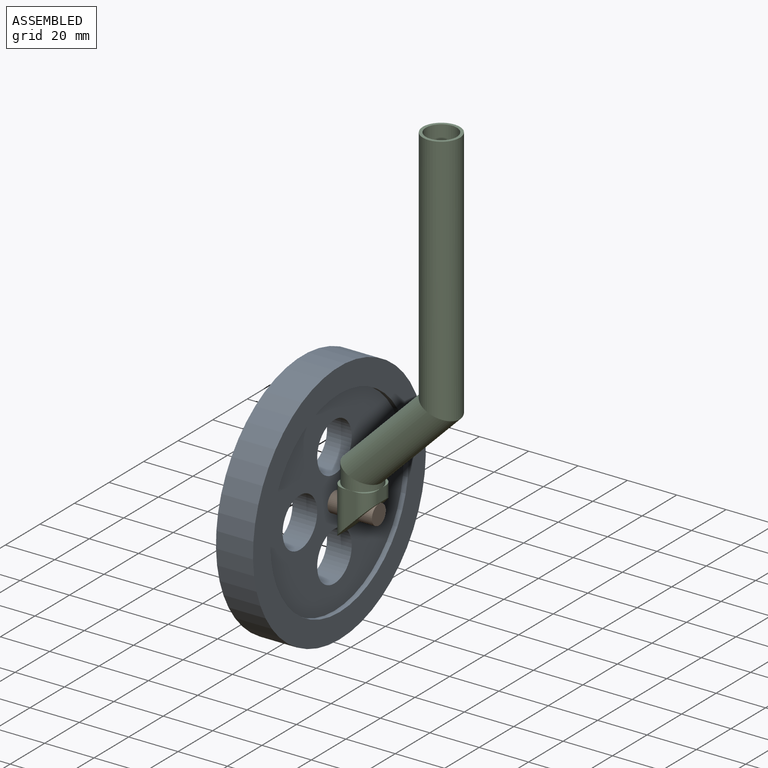
[diagram: assembled view]
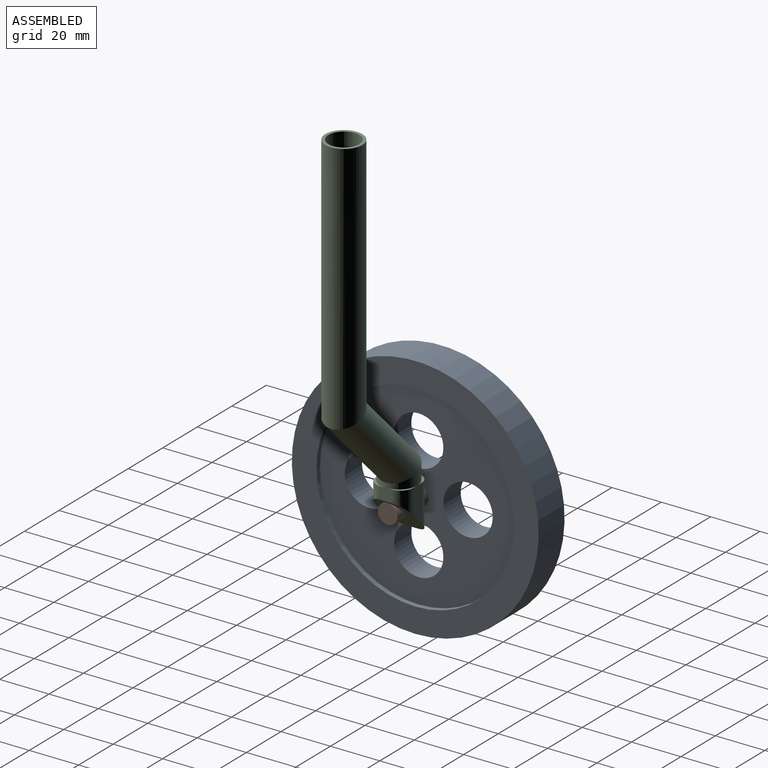
[diagram: assembled view, second angle]
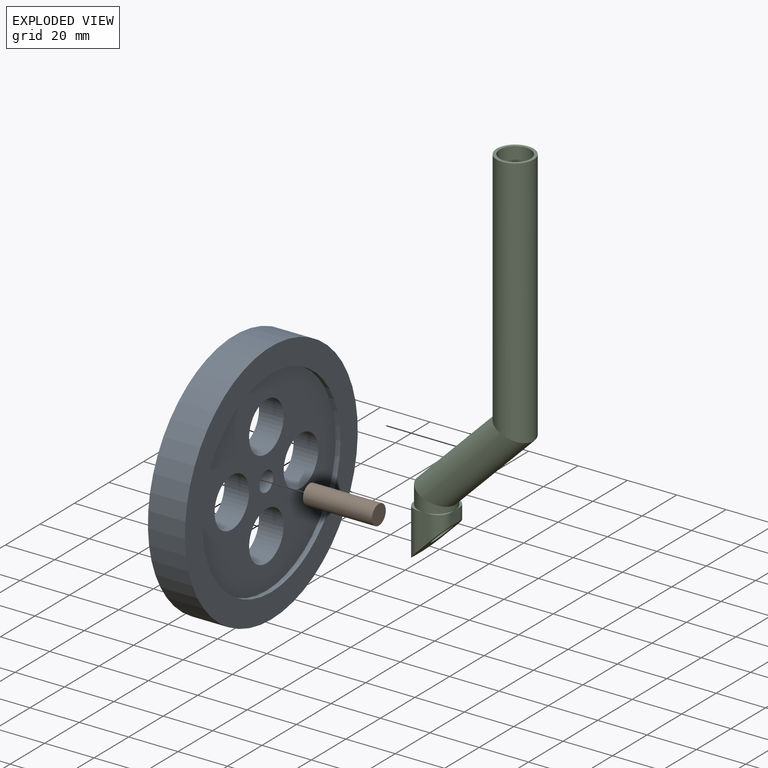
[diagram: exploded view]
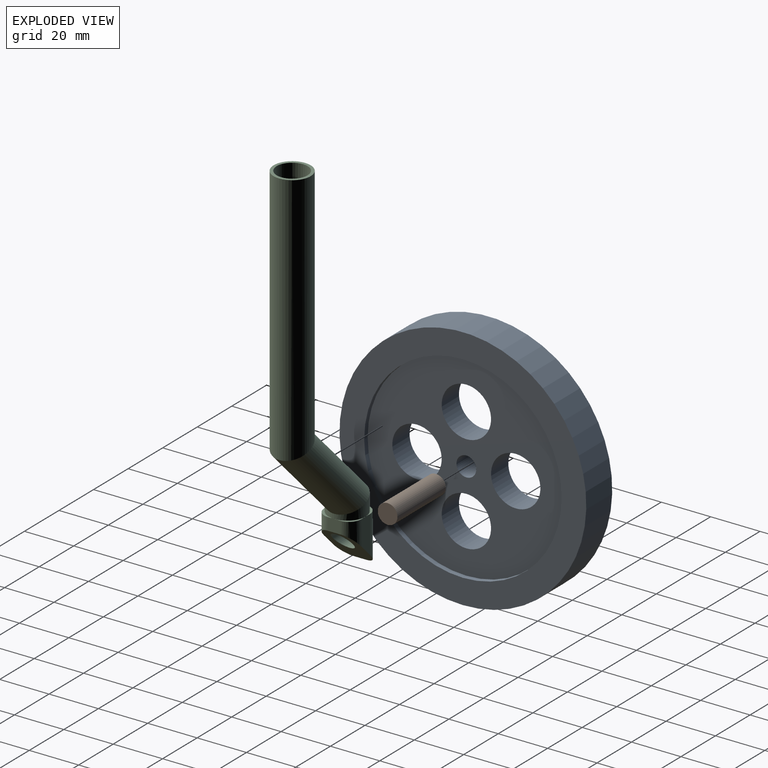
[diagram: exploded view, second angle]
ASSEMBLY  parts=3 mates=2
PART A: 12 faces, bbox 15x100x100 mm
  f0: cylinder r=10mm len=20mm, axis (-1,0,0), area 628.3mm2, adj f8,f10
  f1: cylinder r=10mm len=20mm, axis (-1,0,0), area 628.3mm2, adj f8,f10
  f2: cylinder r=10mm len=20mm, axis (-1,0,0), area 628.3mm2, adj f8,f10
  f3: cylinder r=10mm len=20mm, axis (-1,0,0), area 628.3mm2, adj f8,f10
  f4: cylinder r=40mm len=80mm, axis (-1,0,0), area 754mm2, adj f6,f8
  f5: cylinder r=50mm len=100mm, axis (-1,0,0), area 4712.4mm2, adj f6,f7
  f6: plane 100x100mm, normal (1,0,0), area 2827.4mm2, adj f4,f5
  f7: plane 100x100mm, normal (-1,0,0), area 2827.4mm2, adj f5,f9
  f8: plane 80x80mm, normal (1,0,0), area 3719.6mm2, adj f0,f1,f2,f3,f4,f11
  f9: cylinder r=40mm len=80mm, axis (-1,0,0), area 502.7mm2, adj f7,f10
  f10: plane 80x80mm, normal (-1,0,0), area 3719.6mm2, adj f0,f1,f2,f3,f9,f11
  f11: cylinder r=4mm len=10mm, axis (-1,0,0), area 251.3mm2, adj f8,f10
PART B: 3 faces, bbox 28x8x8 mm
  f0: cylinder r=4mm len=28mm, axis (-1,0,0), area 703.7mm2, adj f1,f2
  f1: plane 8x8mm, normal (1,0,0), area 50.3mm2, adj f0
  f2: plane 8x8mm, normal (-1,0,0), area 50.3mm2, adj f0
PART C: 23 faces, bbox 46.8x15x156.8 mm
  f0: plane 6.88x5mm, normal (-1,0,0), area 31.4mm2, adj f17,f20,f21,f22
  f1: plane 6.88x5mm, normal (-1,0,0), area 31.4mm2, adj f13,f14,f20,f21,f22
  f2: cylinder r=6.28mm len=102.6mm, axis (0,0,1), area 3945.8mm2, adj f3,f5
  f3: cylinder r=6.28mm len=44.38mm, axis (0.71,0,0.71), area 1775.6mm2, adj f2,f4
  f4: cylinder r=6.28mm len=12.56mm, axis (0,0,1), area 197.3mm2, adj f3,f16
  f5: plane 15x15mm, normal (0,0,1), area 52.8mm2, adj f2,f6
  f6: cylinder r=7.5mm len=103.11mm, axis (0,0,1), area 4712.4mm2, adj f5,f7
  f7: cylinder r=7.5mm len=46.82mm, axis (0.71,0,0.71), area 2120.6mm2, adj f6,f8
  f8: cylinder r=7.5mm len=15mm, axis (0,0,1), area 235.6mm2, adj f7,f9,f13,f14,f15
  f9: plane 7.5x7.5mm, normal (0,0,1), area 6.7mm2, adj f8,f10,f12,f19
  f10: plane 5x5mm, normal (1,0,0), area 25mm2, adj f9,f15,f17,f18,f19
  f11: plane 15x5mm, normal (0,1,0), area 62.5mm2, adj f14,f15,f17,f18,f21
  f12: plane 15x5mm, normal (0,-1,0), area 62.5mm2, adj f9,f13,f17,f19,f20
  f13: plane 7.5x7.5mm, normal (0,0,1), area 6.7mm2, adj f1,f8,f12,f20
  f14: plane 7.5x7.5mm, normal (0,0,1), area 6.7mm2, adj f1,f8,f11,f21
  f15: plane 7.5x7.5mm, normal (0,0,1), area 6.7mm2, adj f8,f10,f11,f18
  f16: plane 12.56x12.56mm, normal (0,0,1), area 123.9mm2, adj f4
  f17: plane 15x15mm, normal (0.71,0,-0.71), area 216.8mm2, adj f0,f10,f11,f12,f18,f19,f20,f21
  f18: cylinder r=5mm len=10mm, axis (0,0,-1), area 53.5mm2, adj f10,f11,f15,f17
  f19: cylinder r=5mm len=10mm, axis (0,0,1), area 53.5mm2, adj f9,f10,f12,f17
  f20: cylinder r=5mm len=20mm, axis (0,0,-1), area 136.2mm2, adj f0,f1,f12,f13,f17,f22
  f21: cylinder r=5mm len=20mm, axis (0,0,1), area 136.2mm2, adj f0,f1,f11,f14,f17,f22
  f22: cylinder r=4mm len=14.02mm, axis (-1,0,0), area 251.3mm2, adj f0,f1,f17,f20,f21
PLACE A rot(axis=(0,0,-1),180deg) t=(-42.34,58.43,-29.46)mm
PLACE B rot(axis=(0,0,1),180deg) t=(-26.34,-38.13,-74.8)mm
PLACE C t=(-1.02,-103.27,11.57)mm
MATE fastened B.f0 <-> A.f4  axis (-1,0,0) through (-54.34,-103.27,-64.38)mm
MATE fastened B.f0 <-> C.f22  axis (1,0,0) through (-40.34,-103.27,-64.38)mm
